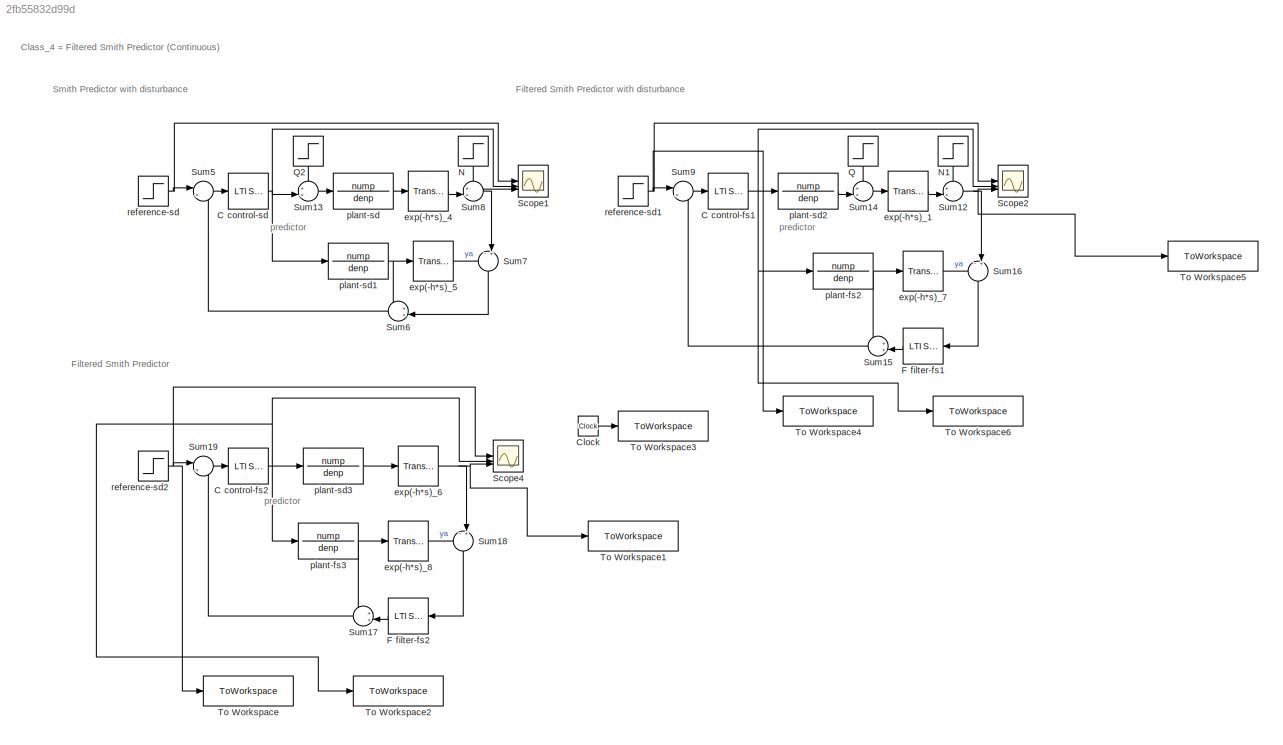
MODEL slx_2fb55832d99d
KIND model
CONFIG AbsTol = auto
CONFIG EnableMultiTasking = off
CONFIG FixedStep = auto
CONFIG MaxStep = auto
CONFIG MinStep = auto
CONFIG RelTol = 1e-3
CONFIG SampleTimeConstraint = Unconstrained
CONFIG SolverName = VariableStepAuto
CONFIG StartTime = 0.0
CONFIG StopTime = 40
BLOCK [Reference] C control-fs1  REF=cstblocks/LTI System
  SourceBlock = cstblocks/LTI System
  SourceType = LTI Block
BLOCK [Reference] C control-fs2  REF=cstblocks/LTI System
  SourceBlock = cstblocks/LTI System
  SourceType = LTI Block
BLOCK [Reference] C control-sd  REF=cstblocks/LTI System
  SourceBlock = cstblocks/LTI System
  SourceType = LTI Block
BLOCK [Clock] Clock
BLOCK [Reference] F filter-fs1  REF=cstblocks/LTI System
  NameLocation = top
  SourceBlock = cstblocks/LTI System
  SourceType = LTI Block
BLOCK [Reference] F filter-fs2  REF=cstblocks/LTI System
  NameLocation = top
  SourceBlock = cstblocks/LTI System
  SourceType = LTI Block
BLOCK [Step] N
  After = 0.2
  NameLocation = left
  SampleTime = 0
  Time = 20
BLOCK [Step] N1
  After = 0.2
  NameLocation = left
  SampleTime = 0
  Time = 20
BLOCK [Step] Q
  After = 0.2
  NameLocation = right
  SampleTime = 0
  Time = 10
BLOCK [Step] Q2
  After = 0.2
  NameLocation = left
  SampleTime = 0
  Time = 10
BLOCK [Scope] Scope1
  Floating = off
  NumInputPorts = 3
  ScopeSpecificationString = Simulink.scopes.TimeScopeBlockCfg('CurrentConfiguration', extmgr.ConfigurationSet(extmgr.Configuration('Core','General UI',true,'FigureColor',[1 1 1]),extmgr.Configuration('Core','Source UI',true),extmgr.Configuration('Sources','WiredSimulink',true,'DataLoggingVariableName','ScopeData1'),extmgr.Configuration('Visuals','Time Domain',true,'SerializedDisplays',{struct('MinYLimReal','-1.3051','MaxYLim...<+1870ch>
BLOCK [Scope] Scope2
  Floating = off
  NumInputPorts = 3
  ScopeSpecificationString = Simulink.scopes.TimeScopeBlockCfg('CurrentConfiguration', extmgr.ConfigurationSet(extmgr.Configuration('Core','General UI',true,'FigureColor',[1 1 1]),extmgr.Configuration('Core','Source UI',true),extmgr.Configuration('Sources','WiredSimulink',true,'DataLoggingVariableName','ScopeData2'),extmgr.Configuration('Visuals','Time Domain',true,'SerializedDisplays',{struct('MinYLimReal','-0.667','MaxYLimR...<+1867ch>
BLOCK [Scope] Scope4
  Floating = off
  NumInputPorts = 3
  ScopeSpecificationString = Simulink.scopes.TimeScopeBlockCfg('CurrentConfiguration', extmgr.ConfigurationSet(extmgr.Configuration('Core','General UI',true,'FigureColor',[1 1 1]),extmgr.Configuration('Core','Source UI',true),extmgr.Configuration('Sources','WiredSimulink',true,'DataLoggingVariableName','ScopeData3'),extmgr.Configuration('Visuals','Time Domain',true,'SerializedDisplays',{struct('MinYLimReal','-0.667','MaxYLimR...<+1873ch>
BLOCK [Sum] Sum12
  Inputs = ++|
BLOCK [Sum] Sum13
  Inputs = ++|
BLOCK [Sum] Sum14
  Inputs = ++|
BLOCK [Sum] Sum15
  Inputs = ++|
  NameLocation = top
BLOCK [Sum] Sum16
  Inputs = -+|
  NameLocation = left
BLOCK [Sum] Sum17
  Inputs = ++|
  NameLocation = top
BLOCK [Sum] Sum18
  Inputs = -+|
  NameLocation = left
BLOCK [Sum] Sum19
  Inputs = |+-
BLOCK [Sum] Sum5
  Inputs = |+-
BLOCK [Sum] Sum6
  Inputs = ++|
  NameLocation = top
BLOCK [Sum] Sum7
  Inputs = -+|
  NameLocation = left
BLOCK [Sum] Sum8
  Inputs = ++|
BLOCK [Sum] Sum9
  Inputs = |+-
BLOCK [ToWorkspace] To Workspace
  FixptAsFi = on
  MaxDataPoints = inf
  SampleTime = -1
  VariableName = fsp_u
BLOCK [ToWorkspace] To Workspace1
  FixptAsFi = on
  MaxDataPoints = inf
  SampleTime = -1
  VariableName = fsp_y
BLOCK [ToWorkspace] To Workspace2
  FixptAsFi = on
  MaxDataPoints = inf
  SampleTime = -1
  VariableName = fsp_c
BLOCK [ToWorkspace] To Workspace3
  FixptAsFi = on
  MaxDataPoints = inf
  SampleTime = -1
  VariableName = fsp_time
BLOCK [ToWorkspace] To Workspace4
  FixptAsFi = on
  MaxDataPoints = inf
  SampleTime = -1
  VariableName = fsp_u1
BLOCK [ToWorkspace] To Workspace5
  FixptAsFi = on
  MaxDataPoints = inf
  SampleTime = -1
  VariableName = fsp_y1
BLOCK [ToWorkspace] To Workspace6
  FixptAsFi = on
  MaxDataPoints = inf
  SampleTime = -1
  VariableName = fsp_c1
BLOCK [TransportDelay] exp(-h*s)_1
  DelayTime = h
BLOCK [TransportDelay] exp(-h*s)_4
  DelayTime = h
BLOCK [TransportDelay] exp(-h*s)_5
  DelayTime = h
BLOCK [TransportDelay] exp(-h*s)_6
  DelayTime = h
BLOCK [TransportDelay] exp(-h*s)_7
  DelayTime = h
BLOCK [TransportDelay] exp(-h*s)_8
  DelayTime = h
BLOCK [TransferFcn] plant-fs2
  Denominator = denp
  Numerator = nump
BLOCK [TransferFcn] plant-fs3
  Denominator = denp
  Numerator = nump
BLOCK [TransferFcn] plant-sd
  Denominator = denp
  Numerator = nump
BLOCK [TransferFcn] plant-sd1
  Denominator = denp
  Numerator = nump
BLOCK [TransferFcn] plant-sd2
  Denominator = denp
  Numerator = nump
BLOCK [TransferFcn] plant-sd3
  Denominator = denp
  Numerator = nump
BLOCK [Step] reference-sd
  SampleTime = 0
  Time = 0
BLOCK [Step] reference-sd1
  SampleTime = 0
  Time = 0
BLOCK [Step] reference-sd2
  SampleTime = 0
  Time = 0
ANNOTATION (root): Class_4 = Filtered Smith Predictor (Continuous)
ANNOTATION (root): Filtered Smith Predictor
ANNOTATION (root): Filtered Smith Predictor with disturbance
ANNOTATION (root): Smith Predictor with disturbance
ANNOTATION (root): predictor
NET C control-fs1:1 -> Scope2:2, To Workspace6:1, plant-fs2:1, plant-sd2:1
NET C control-fs2:1 -> Scope4:2, To Workspace2:1, plant-fs3:1, plant-sd3:1
NET C control-sd:1 -> Scope1:2, Sum13:2, plant-sd1:1
LINE Clock:1 -> To Workspace3:1
LINE F filter-fs1:1 -> Sum15:2
LINE F filter-fs2:1 -> Sum17:2
LINE N1:1 -> Sum12:1
LINE N:1 -> Sum8:1
LINE Q2:1 -> Sum13:1
LINE Q:1 -> Sum14:1
NET Sum12:1 -> Scope2:3, Sum16:2, To Workspace5:1
LINE Sum13:1 -> plant-sd:1
LINE Sum14:1 -> exp(-h*s)_1:1
LINE Sum15:1 -> Sum9:2
LINE Sum16:1 -> F filter-fs1:1
LINE Sum17:1 -> Sum19:2
LINE Sum18:1 -> F filter-fs2:1
LINE Sum19:1 -> C control-fs2:1
LINE Sum5:1 -> C control-sd:1
LINE Sum6:1 -> Sum5:2
LINE Sum7:1 -> Sum6:2
NET Sum8:1 -> Scope1:3, Sum7:2
LINE Sum9:1 -> C control-fs1:1
LINE exp(-h*s)_1:1 -> Sum12:2
LINE exp(-h*s)_4:1 -> Sum8:2
LINE exp(-h*s)_5:1 -> Sum7:1
NET exp(-h*s)_6:1 -> Scope4:3, Sum18:2, To Workspace1:1
LINE exp(-h*s)_7:1 -> Sum16:1
LINE exp(-h*s)_8:1 -> Sum18:1
NET plant-fs2:1 -> Sum15:1, exp(-h*s)_7:1
NET plant-fs3:1 -> Sum17:1, exp(-h*s)_8:1
NET plant-sd1:1 -> Sum6:1, exp(-h*s)_5:1
LINE plant-sd2:1 -> Sum14:2
LINE plant-sd3:1 -> exp(-h*s)_6:1
LINE plant-sd:1 -> exp(-h*s)_4:1
NET reference-sd1:1 -> Scope2:1, Sum9:1, To Workspace4:1
NET reference-sd2:1 -> Scope4:1, Sum19:1, To Workspace:1
NET reference-sd:1 -> Scope1:1, Sum5:1
note: NET lines group one-source signal fan-out (src -> all destinations, sorted); 1:1 wires keep LINE
